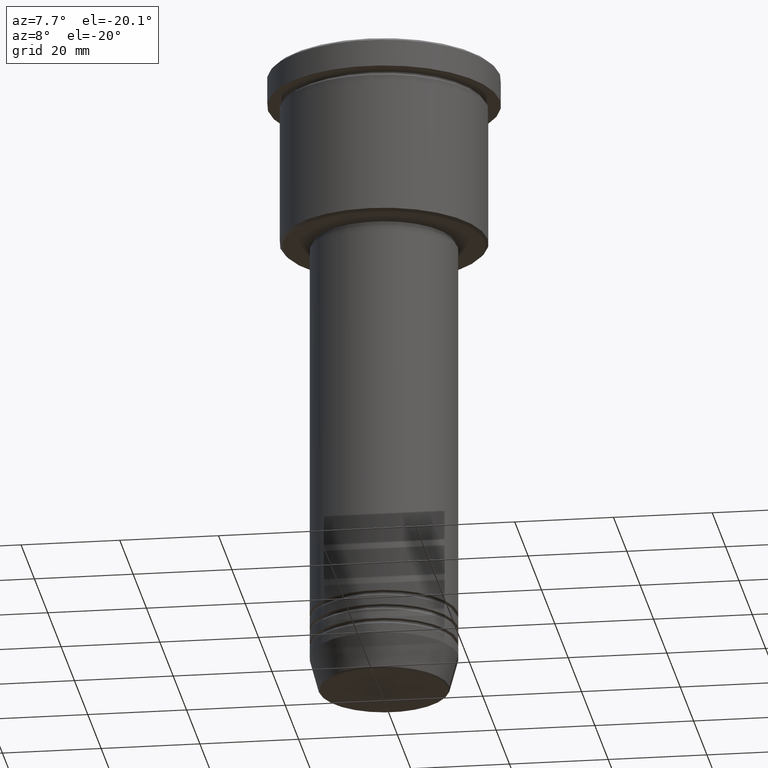
[diagram: clean part render]
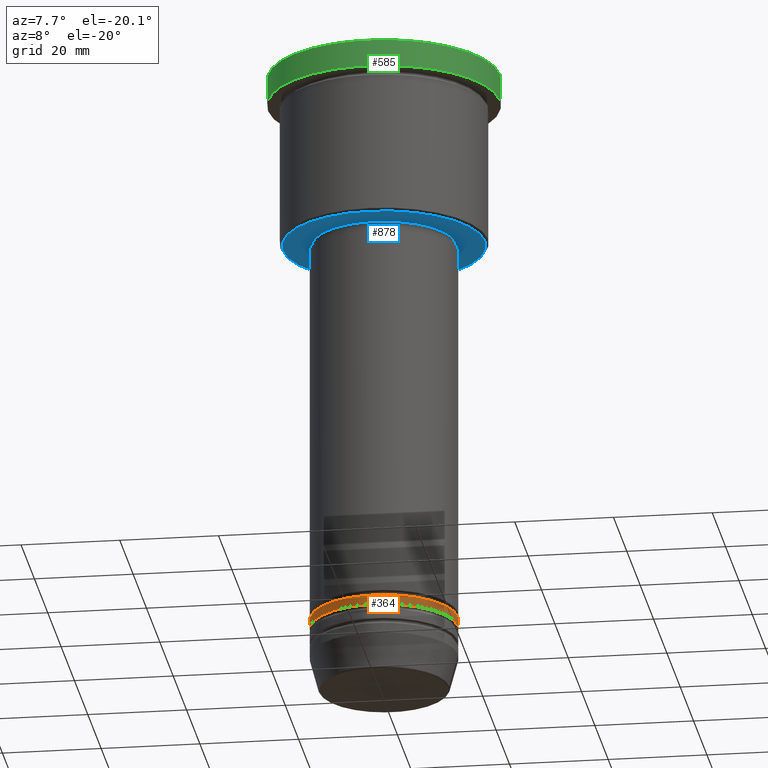
[diagram: same view with three faces highlighted in distinct colors, each labeled with its STEP entity id]
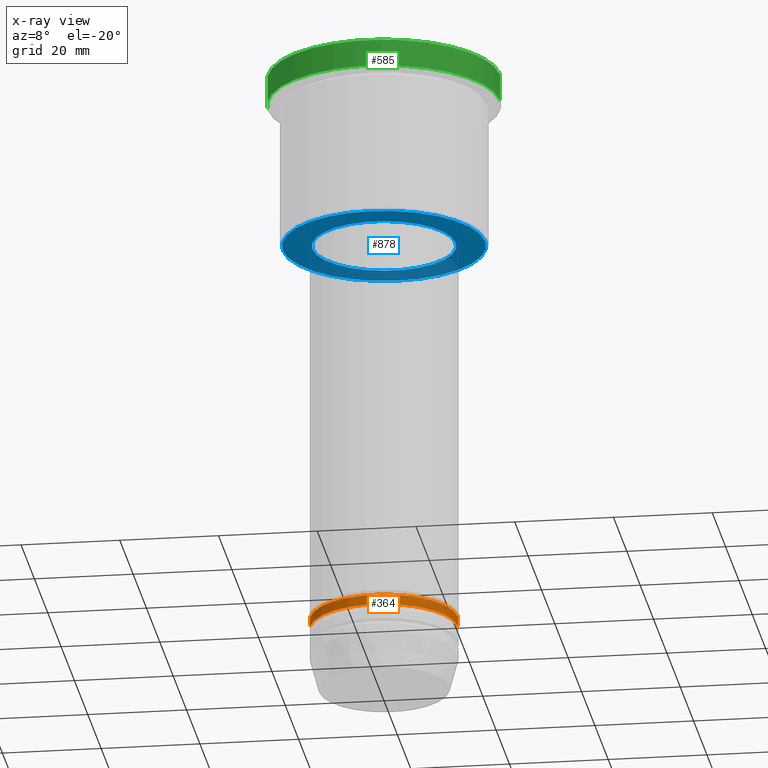
[diagram: x-ray of the same camera — body ghosted, the three highlighted faces saturated]
A machine part, auxiliary view with three faces highlighted in distinct colors.
The next image is the same camera in x-ray (body ghosted, the three faces saturated) — at least one of them is partly hidden behind the body in this view.
Their STEP definitions:

[orange] entity #364 — the highlighted cylindrical surface (partial cylindrical patch) has radius 15 mm, axis along (-0, -0, 1).
#1 = CARTESIAN_POINT ( 'NONE',  ( 15.00000000000000000, 0.000000000000000000, 0.000000000000000000 ) ) ;
#46 = VERTEX_POINT ( 'NONE', #418 ) ;
#190 = DIRECTION ( 'NONE',  ( -0.000000000000000000, -0.000000000000000000, 1.000000000000000000 ) ) ;
#198 = AXIS2_PLACEMENT_3D ( 'NONE', #1093, #760, #509 ) ;
#255 = VERTEX_POINT ( 'NONE', #1041 ) ;
#271 = CIRCLE ( 'NONE', #396, 15.00000000000000000 ) ;
#284 = DIRECTION ( 'NONE',  ( 1.000000000000000000, 0.000000000000000000, 0.000000000000000000 ) ) ;
#297 = CARTESIAN_POINT ( 'NONE',  ( -15.00000000000000000, 1.836970198721029589E-15, -117.9999999999999716 ) ) ;
#307 = VERTEX_POINT ( 'NONE', #297 ) ;
#311 = VERTEX_POINT ( 'NONE', #1017 ) ;
#340 = DIRECTION ( 'NONE',  ( -0.000000000000000000, -0.000000000000000000, 1.000000000000000000 ) ) ;
#350 = ORIENTED_EDGE ( 'NONE', *, *, #852, .F. ) ;
#364 = ADVANCED_FACE ( 'NONE', ( #738 ), #1006, .T. ) ;
#371 = CARTESIAN_POINT ( 'NONE',  ( 0.000000000000000000, 0.000000000000000000, 0.000000000000000000 ) ) ;
#389 = ORIENTED_EDGE ( 'NONE', *, *, #747, .T. ) ;
#396 = AXIS2_PLACEMENT_3D ( 'NONE', #1048, #434, #807 ) ;
#418 = CARTESIAN_POINT ( 'NONE',  ( 15.00000000000000000, 0.000000000000000000, -117.9999999999999716 ) ) ;
#434 = DIRECTION ( 'NONE',  ( -0.000000000000000000, -0.000000000000000000, 1.000000000000000000 ) ) ;
#456 = LINE ( 'NONE', #1, #695 ) ;
#469 = DIRECTION ( 'NONE',  ( -0.000000000000000000, -0.000000000000000000, 1.000000000000000000 ) ) ;
#509 = DIRECTION ( 'NONE',  ( 1.000000000000000000, 0.000000000000000000, 0.000000000000000000 ) ) ;
#623 = EDGE_CURVE ( 'NONE', #307, #46, #271, .T. ) ;
#632 = EDGE_CURVE ( 'NONE', #307, #255, #1139, .T. ) ;
#695 = VECTOR ( 'NONE', #190, 1000.000000000000000 ) ;
#717 = VECTOR ( 'NONE', #340, 1000.000000000000000 ) ;
#738 = FACE_OUTER_BOUND ( 'NONE', #862, .T. ) ;
#747 = EDGE_CURVE ( 'NONE', #46, #311, #456, .T. ) ;
#760 = DIRECTION ( 'NONE',  ( -0.000000000000000000, -0.000000000000000000, 1.000000000000000000 ) ) ;
#779 = CIRCLE ( 'NONE', #198, 15.00000000000000000 ) ;
#807 = DIRECTION ( 'NONE',  ( 1.000000000000000000, 0.000000000000000000, 0.000000000000000000 ) ) ;
#852 = EDGE_CURVE ( 'NONE', #255, #311, #779, .T. ) ;
#862 = EDGE_LOOP ( 'NONE', ( #1035, #1063, #389, #350 ) ) ;
#1006 = CYLINDRICAL_SURFACE ( 'NONE', #1064, 15.00000000000000000 ) ;
#1017 = CARTESIAN_POINT ( 'NONE',  ( 15.00000000000000000, 0.000000000000000000, -115.9999999999999716 ) ) ;
#1035 = ORIENTED_EDGE ( 'NONE', *, *, #632, .F. ) ;
#1041 = CARTESIAN_POINT ( 'NONE',  ( -15.00000000000000000, 1.836970198721029589E-15, -115.9999999999999716 ) ) ;
#1048 = CARTESIAN_POINT ( 'NONE',  ( 0.000000000000000000, 0.000000000000000000, -117.9999999999999716 ) ) ;
#1063 = ORIENTED_EDGE ( 'NONE', *, *, #623, .T. ) ;
#1064 = AXIS2_PLACEMENT_3D ( 'NONE', #371, #469, #284 ) ;
#1093 = CARTESIAN_POINT ( 'NONE',  ( 0.000000000000000000, 0.000000000000000000, -115.9999999999999716 ) ) ;
#1139 = LINE ( 'NONE', #1168, #717 ) ;
#1168 = CARTESIAN_POINT ( 'NONE',  ( -15.00000000000000000, 1.836970198721029589E-15, 0.000000000000000000 ) ) ;

[blue] entity #878 — the highlighted planar face has unit normal (0, 0, -1).
#24 = VERTEX_POINT ( 'NONE', #591 ) ;
#55 = ORIENTED_EDGE ( 'NONE', *, *, #309, .T. ) ;
#99 = AXIS2_PLACEMENT_3D ( 'NONE', #313, #593, #1036 ) ;
#107 = VERTEX_POINT ( 'NONE', #276 ) ;
#195 = CIRCLE ( 'NONE', #792, 20.49999999999998934 ) ;
#229 = AXIS2_PLACEMENT_3D ( 'NONE', #231, #431, #247 ) ;
#231 = CARTESIAN_POINT ( 'NONE',  ( 0.000000000000000000, 0.000000000000000000, -35.99999999999999289 ) ) ;
#235 = CIRCLE ( 'NONE', #584, 20.49999999999998934 ) ;
#247 = DIRECTION ( 'NONE',  ( 1.000000000000000000, 0.000000000000000000, 0.000000000000000000 ) ) ;
#276 = CARTESIAN_POINT ( 'NONE',  ( -14.49999999999999822, 1.775737858763662015E-15, -35.99999999999999289 ) ) ;
#308 = EDGE_LOOP ( 'NONE', ( #745, #55 ) ) ;
#309 = EDGE_CURVE ( 'NONE', #414, #24, #195, .T. ) ;
#313 = CARTESIAN_POINT ( 'NONE',  ( 0.000000000000000000, 21.00000000000000000, -35.99999999999999289 ) ) ;
#323 = FACE_OUTER_BOUND ( 'NONE', #308, .T. ) ;
#345 = EDGE_LOOP ( 'NONE', ( #457, #417 ) ) ;
#400 = CARTESIAN_POINT ( 'NONE',  ( 0.000000000000000000, 0.000000000000000000, -35.99999999999999289 ) ) ;
#414 = VERTEX_POINT ( 'NONE', #638 ) ;
#417 = ORIENTED_EDGE ( 'NONE', *, *, #1043, .T. ) ;
#431 = DIRECTION ( 'NONE',  ( -0.000000000000000000, -0.000000000000000000, 1.000000000000000000 ) ) ;
#457 = ORIENTED_EDGE ( 'NONE', *, *, #1155, .T. ) ;
#501 = FACE_BOUND ( 'NONE', #345, .T. ) ;
#521 = AXIS2_PLACEMENT_3D ( 'NONE', #1136, #541, #787 ) ;
#541 = DIRECTION ( 'NONE',  ( -0.000000000000000000, -0.000000000000000000, 1.000000000000000000 ) ) ;
#576 = DIRECTION ( 'NONE',  ( -1.000000000000000000, 0.000000000000000000, 0.000000000000000000 ) ) ;
#584 = AXIS2_PLACEMENT_3D ( 'NONE', #400, #950, #576 ) ;
#591 = CARTESIAN_POINT ( 'NONE',  ( 20.49999999999998934, 0.000000000000000000, -35.99999999999999289 ) ) ;
#593 = DIRECTION ( 'NONE',  ( 0.000000000000000000, 0.000000000000000000, -1.000000000000000000 ) ) ;
#638 = CARTESIAN_POINT ( 'NONE',  ( -20.49999999999998934, 2.541142108230757480E-15, -35.99999999999999289 ) ) ;
#646 = DIRECTION ( 'NONE',  ( -1.000000000000000000, 0.000000000000000000, 0.000000000000000000 ) ) ;
#745 = ORIENTED_EDGE ( 'NONE', *, *, #893, .T. ) ;
#771 = CIRCLE ( 'NONE', #229, 14.49999999999999822 ) ;
#787 = DIRECTION ( 'NONE',  ( 1.000000000000000000, 0.000000000000000000, 0.000000000000000000 ) ) ;
#792 = AXIS2_PLACEMENT_3D ( 'NONE', #847, #929, #646 ) ;
#847 = CARTESIAN_POINT ( 'NONE',  ( 0.000000000000000000, 0.000000000000000000, -35.99999999999999289 ) ) ;
#878 = ADVANCED_FACE ( 'NONE', ( #323, #501 ), #1109, .T. ) ;
#886 = CARTESIAN_POINT ( 'NONE',  ( 14.49999999999999822, 0.000000000000000000, -35.99999999999999289 ) ) ;
#893 = EDGE_CURVE ( 'NONE', #24, #414, #235, .T. ) ;
#929 = DIRECTION ( 'NONE',  ( 0.000000000000000000, 0.000000000000000000, -1.000000000000000000 ) ) ;
#950 = DIRECTION ( 'NONE',  ( 0.000000000000000000, 0.000000000000000000, -1.000000000000000000 ) ) ;
#1020 = CIRCLE ( 'NONE', #521, 14.49999999999999822 ) ;
#1036 = DIRECTION ( 'NONE',  ( -1.000000000000000000, 0.000000000000000000, -0.000000000000000000 ) ) ;
#1043 = EDGE_CURVE ( 'NONE', #107, #1076, #1020, .T. ) ;
#1076 = VERTEX_POINT ( 'NONE', #886 ) ;
#1109 = PLANE ( 'NONE',  #99 ) ;
#1136 = CARTESIAN_POINT ( 'NONE',  ( 0.000000000000000000, 0.000000000000000000, -35.99999999999999289 ) ) ;
#1155 = EDGE_CURVE ( 'NONE', #1076, #107, #771, .T. ) ;

[green] entity #585 — the highlighted cylindrical surface (partial cylindrical patch) has radius 23.5 mm, axis along (-0, -0, 1).
#25 = CARTESIAN_POINT ( 'NONE',  ( 23.50000000000000000, 0.000000000000000000, 0.000000000000000000 ) ) ;
#35 = VERTEX_POINT ( 'NONE', #236 ) ;
#57 = DIRECTION ( 'NONE',  ( 1.000000000000000000, 0.000000000000000000, 0.000000000000000000 ) ) ;
#205 = CARTESIAN_POINT ( 'NONE',  ( 0.000000000000000000, 0.000000000000000000, -5.999999999999994671 ) ) ;
#236 = CARTESIAN_POINT ( 'NONE',  ( 23.50000000000000000, 0.000000000000000000, -0.5000000000000143219 ) ) ;
#249 = DIRECTION ( 'NONE',  ( -0.000000000000000000, -0.000000000000000000, 1.000000000000000000 ) ) ;
#258 = LINE ( 'NONE', #892, #756 ) ;
#289 = CARTESIAN_POINT ( 'NONE',  ( 23.50000000000000000, 0.000000000000000000, -5.999999999999994671 ) ) ;
#298 = CARTESIAN_POINT ( 'NONE',  ( -23.50000000000000000, 2.877919977996280320E-15, -5.999999999999994671 ) ) ;
#344 = VERTEX_POINT ( 'NONE', #289 ) ;
#352 = EDGE_CURVE ( 'NONE', #894, #344, #412, .T. ) ;
#397 = LINE ( 'NONE', #25, #647 ) ;
#412 = CIRCLE ( 'NONE', #671, 23.50000000000000000 ) ;
#569 = AXIS2_PLACEMENT_3D ( 'NONE', #1060, #249, #57 ) ;
#572 = DIRECTION ( 'NONE',  ( 1.000000000000000000, 0.000000000000000000, 0.000000000000000000 ) ) ;
#585 = ADVANCED_FACE ( 'NONE', ( #980 ), #1149, .T. ) ;
#600 = ORIENTED_EDGE ( 'NONE', *, *, #796, .T. ) ;
#634 = EDGE_CURVE ( 'NONE', #894, #664, #258, .T. ) ;
#647 = VECTOR ( 'NONE', #770, 1000.000000000000000 ) ;
#652 = ORIENTED_EDGE ( 'NONE', *, *, #352, .T. ) ;
#655 = DIRECTION ( 'NONE',  ( 0.000000000000000000, 0.000000000000000000, -1.000000000000000000 ) ) ;
#664 = VERTEX_POINT ( 'NONE', #887 ) ;
#671 = AXIS2_PLACEMENT_3D ( 'NONE', #205, #994, #572 ) ;
#756 = VECTOR ( 'NONE', #1161, 1000.000000000000000 ) ;
#770 = DIRECTION ( 'NONE',  ( -0.000000000000000000, -0.000000000000000000, 1.000000000000000000 ) ) ;
#796 = EDGE_CURVE ( 'NONE', #35, #664, #864, .T. ) ;
#864 = CIRCLE ( 'NONE', #992, 23.50000000000000000 ) ;
#869 = ORIENTED_EDGE ( 'NONE', *, *, #1013, .T. ) ;
#887 = CARTESIAN_POINT ( 'NONE',  ( -23.50000000000000000, 2.877919977996280320E-15, -0.5000000000000143219 ) ) ;
#892 = CARTESIAN_POINT ( 'NONE',  ( -23.50000000000000000, 2.877919977996280320E-15, 0.000000000000000000 ) ) ;
#894 = VERTEX_POINT ( 'NONE', #298 ) ;
#914 = CARTESIAN_POINT ( 'NONE',  ( 0.000000000000000000, 0.000000000000000000, -0.5000000000000143219 ) ) ;
#966 = EDGE_LOOP ( 'NONE', ( #1164, #652, #869, #600 ) ) ;
#980 = FACE_OUTER_BOUND ( 'NONE', #966, .T. ) ;
#992 = AXIS2_PLACEMENT_3D ( 'NONE', #914, #655, #1086 ) ;
#994 = DIRECTION ( 'NONE',  ( -0.000000000000000000, -0.000000000000000000, 1.000000000000000000 ) ) ;
#1013 = EDGE_CURVE ( 'NONE', #344, #35, #397, .T. ) ;
#1060 = CARTESIAN_POINT ( 'NONE',  ( 0.000000000000000000, 0.000000000000000000, 0.000000000000000000 ) ) ;
#1086 = DIRECTION ( 'NONE',  ( 1.000000000000000000, 0.000000000000000000, 0.000000000000000000 ) ) ;
#1149 = CYLINDRICAL_SURFACE ( 'NONE', #569, 23.50000000000000000 ) ;
#1161 = DIRECTION ( 'NONE',  ( -0.000000000000000000, -0.000000000000000000, 1.000000000000000000 ) ) ;
#1164 = ORIENTED_EDGE ( 'NONE', *, *, #634, .F. ) ;